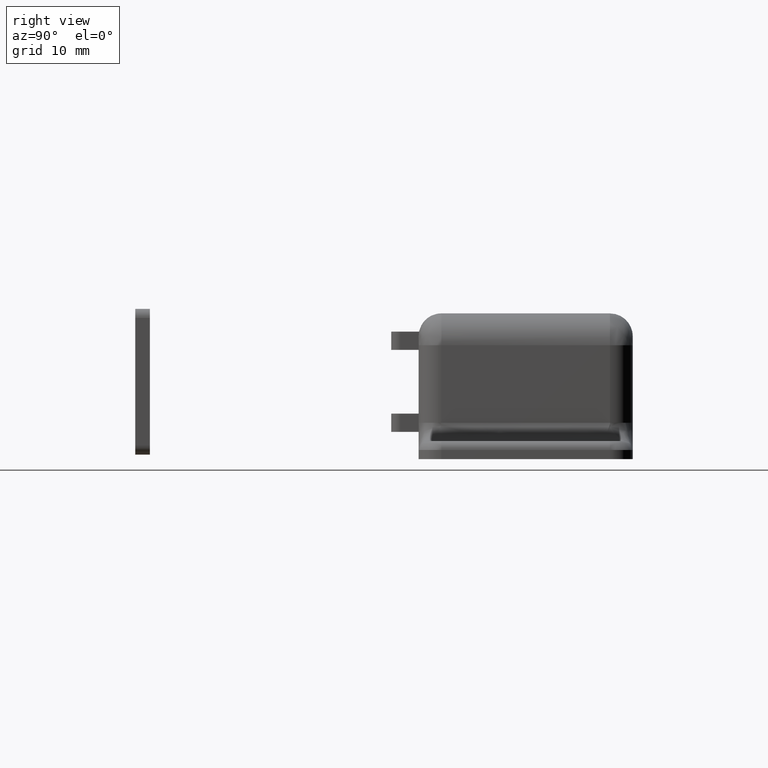
[diagram: clean part render]
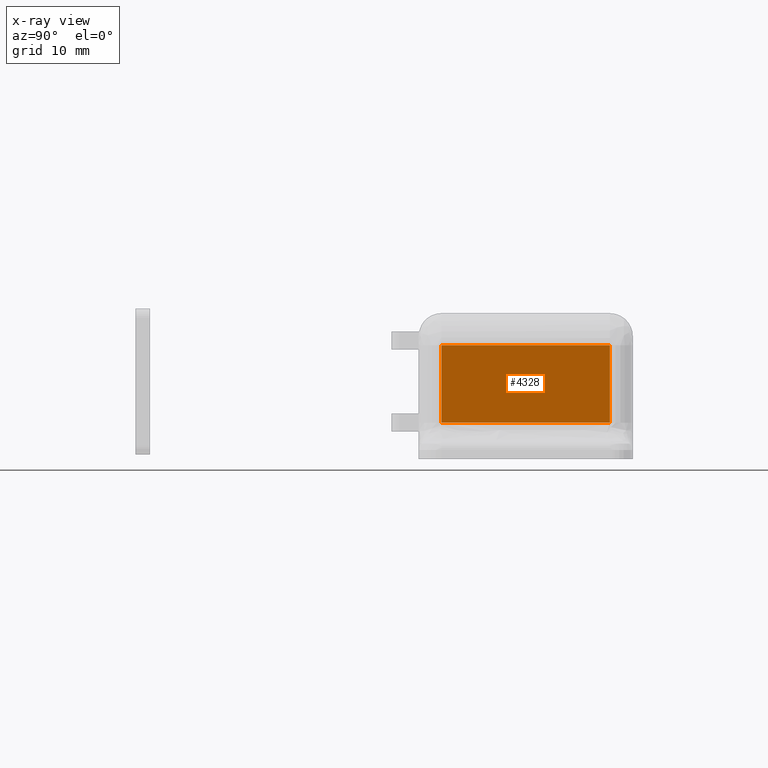
[diagram: x-ray — body ghosted, one internal face saturated and labeled with its STEP entity id]
A machine part, right view, then the same camera in x-ray: the body is ghosted and one INTERNAL B-rep face — a face not visible from any outside direction — is saturated and labeled: STEP entity #4328.
In plain terms, the highlighted face is a freeform B-spline surface patch.
Its self-contained STEP definition (entity closure, byte-faithful):
#2852=CARTESIAN_POINT('',(16.199999999999999,-21.0,12.499999999999840));
#2853=VERTEX_POINT('',#2852);
#2970=CARTESIAN_POINT('',(16.199999999999999,-21.0,4.0));
#2971=VERTEX_POINT('',#2970);
#2991=CARTESIAN_POINT('',(16.199999999999999,-21.0,12.499999999999840));
#2992=CARTESIAN_POINT('',(16.199999999999999,-21.0,4.0));
#2993=QUASI_UNIFORM_CURVE('',1,(#2991,#2992),.UNSPECIFIED.,.F.,.U.);
#2994=EDGE_CURVE('',#2853,#2971,#2993,.T.);
#3654=CARTESIAN_POINT('',(16.199999999999999,-2.500000000000000,12.499999999999840));
#3655=VERTEX_POINT('',#3654);
#3779=CARTESIAN_POINT('',(16.199999999999999,-2.500000000000000,4.0));
#3780=VERTEX_POINT('',#3779);
#3796=CARTESIAN_POINT('',(16.199999999999999,-2.500000000000000,4.0));
#3797=CARTESIAN_POINT('',(16.199999999999999,-2.500000000000000,12.499999999999840));
#3798=QUASI_UNIFORM_CURVE('',1,(#3796,#3797),.UNSPECIFIED.,.F.,.U.);
#3799=EDGE_CURVE('',#3780,#3655,#3798,.T.);
#4019=CARTESIAN_POINT('',(16.199999999999999,-2.500000000000000,12.499999999999840));
#4020=CARTESIAN_POINT('',(16.199999999999999,-21.0,12.499999999999840));
#4021=QUASI_UNIFORM_CURVE('',1,(#4019,#4020),.UNSPECIFIED.,.F.,.U.);
#4022=EDGE_CURVE('',#3655,#2853,#4021,.T.);
#4112=CARTESIAN_POINT('',(16.199999999999999,-21.0,4.0));
#4113=CARTESIAN_POINT('',(16.199999999999999,-2.500000000000000,4.0));
#4114=QUASI_UNIFORM_CURVE('',1,(#4112,#4113),.UNSPECIFIED.,.F.,.U.);
#4115=EDGE_CURVE('',#2971,#3780,#4114,.T.);
#4317=CARTESIAN_POINT('',(16.199999999999999,-21.924074964143411,3.575425016474657));
#4318=CARTESIAN_POINT('',(16.199999999999999,-1.575924539647923,3.575425016474657));
#4319=CARTESIAN_POINT('',(16.199999999999999,-21.924074964143411,12.924575211512950));
#4320=CARTESIAN_POINT('',(16.199999999999999,-1.575924539647923,12.924575211512950));
#4321=B_SPLINE_SURFACE_WITH_KNOTS('',1,1,((#4317,#4319),(#4318,#4320)),.UNSPECIFIED.,.F.,.F.,.U.,(2,2),(2,2),(0.0,20.348150424495490),(0.0,9.349150195038291),.UNSPECIFIED.);
#4322=ORIENTED_EDGE('',*,*,#4115,.F.);
#4323=ORIENTED_EDGE('',*,*,#2994,.F.);
#4324=ORIENTED_EDGE('',*,*,#4022,.F.);
#4325=ORIENTED_EDGE('',*,*,#3799,.F.);
#4326=EDGE_LOOP('',(#4322,#4323,#4324,#4325));
#4327=FACE_OUTER_BOUND('',#4326,.T.);
#4328=ADVANCED_FACE('',(#4327),#4321,.F.);